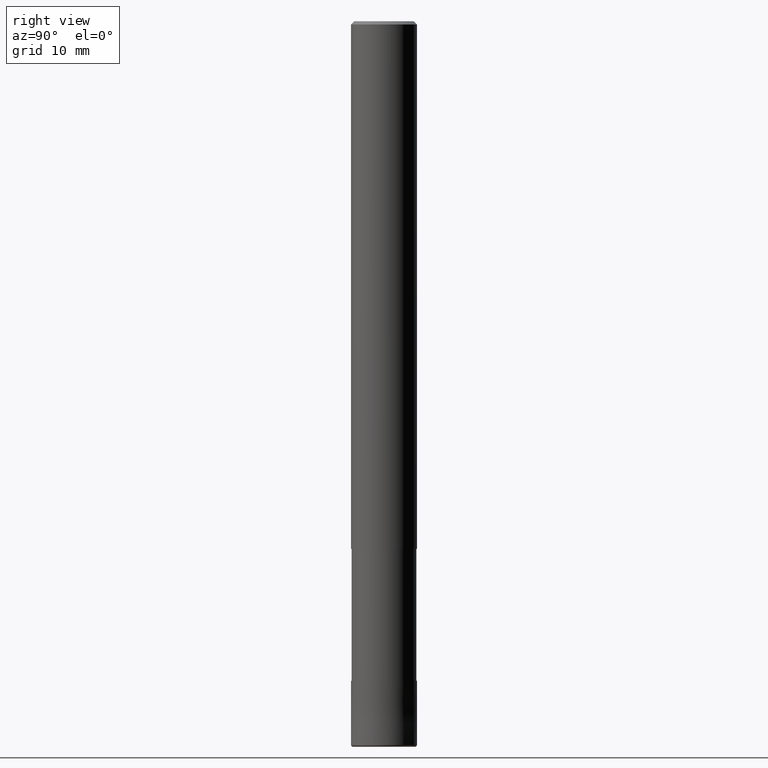
[diagram: clean part render]
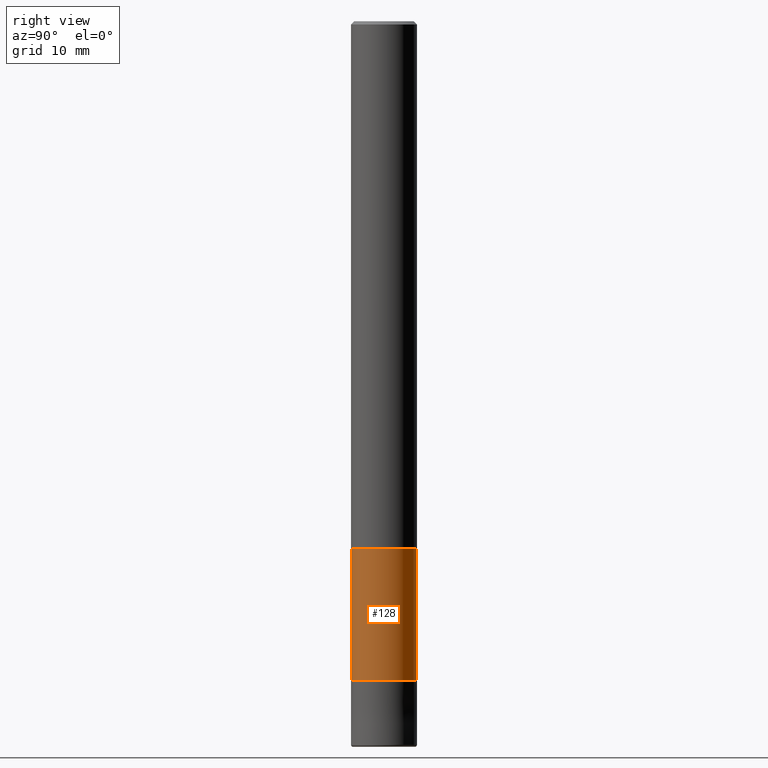
[diagram: same view with one face highlighted and labeled with its STEP entity id]
A machine part, right view. The second image highlights one B-rep face of the part: STEP entity #128.
In plain terms, the highlighted cylindrical surface (edge-blend (fillet) strip) has radius 4.91 mm, axis along (-0, -0, 1).
Its self-contained STEP definition (entity closure, byte-faithful):
#112=VERTEX_POINT('',#251);
#114=VERTEX_POINT('',#253);
#128=ADVANCED_FACE('',(#268),#269,.T.);
#130=VERTEX_POINT('',#271);
#166=EDGE_CURVE('',#112,#176,#312,.T.);
#172=EDGE_CURVE('',#130,#114,#318,.T.);
#176=VERTEX_POINT('',#324);
#180=EDGE_CURVE('',#176,#130,#328,.T.);
#202=EDGE_CURVE('',#112,#114,#354,.T.);
#251=CARTESIAN_POINT('',(0.0,4.90995,-80.0));
#253=CARTESIAN_POINT('',(6.01275596695018E-016,-4.90995,-80.0));
#268=FACE_OUTER_BOUND('',#422,.T.);
#269=CYLINDRICAL_SURFACE('',#423,4.90995);
#271=CARTESIAN_POINT('',(6.01275596695018E-016,-4.90995,-100.0));
#312=LINE('',#477,#478);
#318=LINE('',#488,#489);
#324=CARTESIAN_POINT('',(0.0,4.90995,-100.0));
#328=CIRCLE('',#502,4.90995);
#354=CIRCLE('',#529,4.90995);
#422=EDGE_LOOP('',(#580,#581,#582,#583));
#423=AXIS2_PLACEMENT_3D('',#584,#585,#586);
#477=CARTESIAN_POINT('',(-6.01275596695018E-016,4.90995,-90.0));
#478=VECTOR('',#645,1.0);
#488=CARTESIAN_POINT('',(6.01275596695018E-016,-4.90995,-90.0));
#489=VECTOR('',#650,1.0);
#502=AXIS2_PLACEMENT_3D('',#660,#661,#662);
#529=AXIS2_PLACEMENT_3D('',#701,#702,#703);
#580=ORIENTED_EDGE('',*,*,#166,.F.);
#581=ORIENTED_EDGE('',*,*,#202,.T.);
#582=ORIENTED_EDGE('',*,*,#172,.F.);
#583=ORIENTED_EDGE('',*,*,#180,.F.);
#584=CARTESIAN_POINT('',(0.0,0.0,-90.0));
#585=DIRECTION('',(-0.0,-0.0,1.0));
#586=DIRECTION('',(0.0,1.0,0.0));
#645=DIRECTION('',(0.0,0.0,-1.0));
#650=DIRECTION('',(-0.0,-0.0,1.0));
#660=CARTESIAN_POINT('',(0.0,0.0,-100.0));
#661=DIRECTION('',(0.0,0.0,-1.0));
#662=DIRECTION('',(0.0,1.0,0.0));
#701=CARTESIAN_POINT('',(0.0,0.0,-80.0));
#702=DIRECTION('',(0.0,0.0,-1.0));
#703=DIRECTION('',(0.0,1.0,0.0));